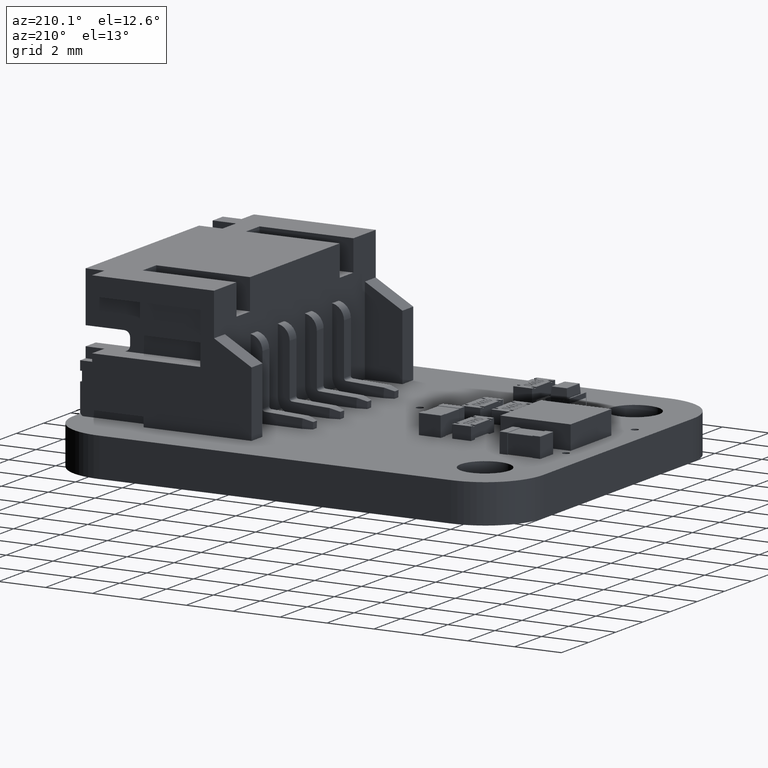
[diagram: clean part render]
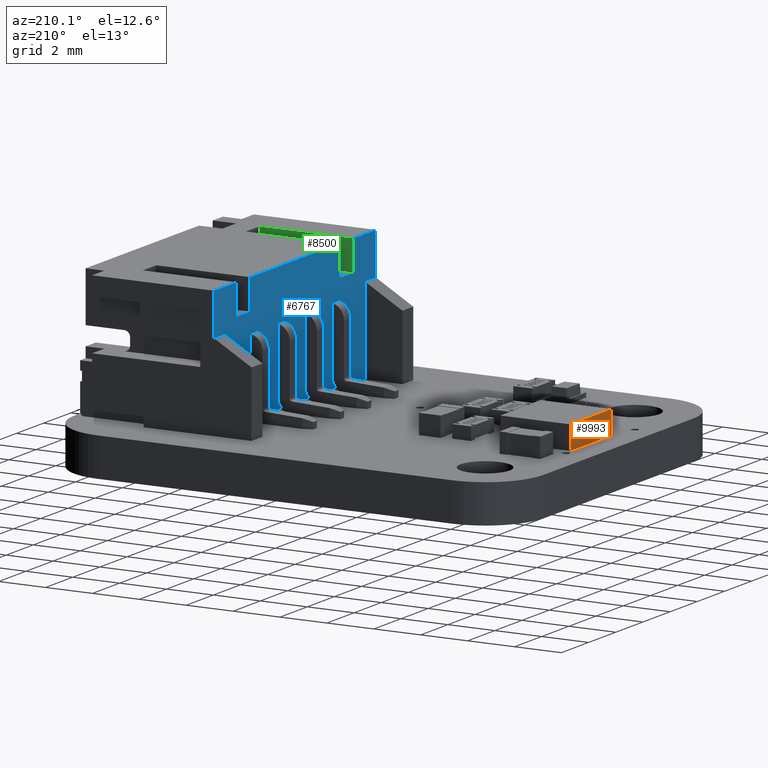
[diagram: same view with three faces highlighted in distinct colors, each labeled with its STEP entity id]
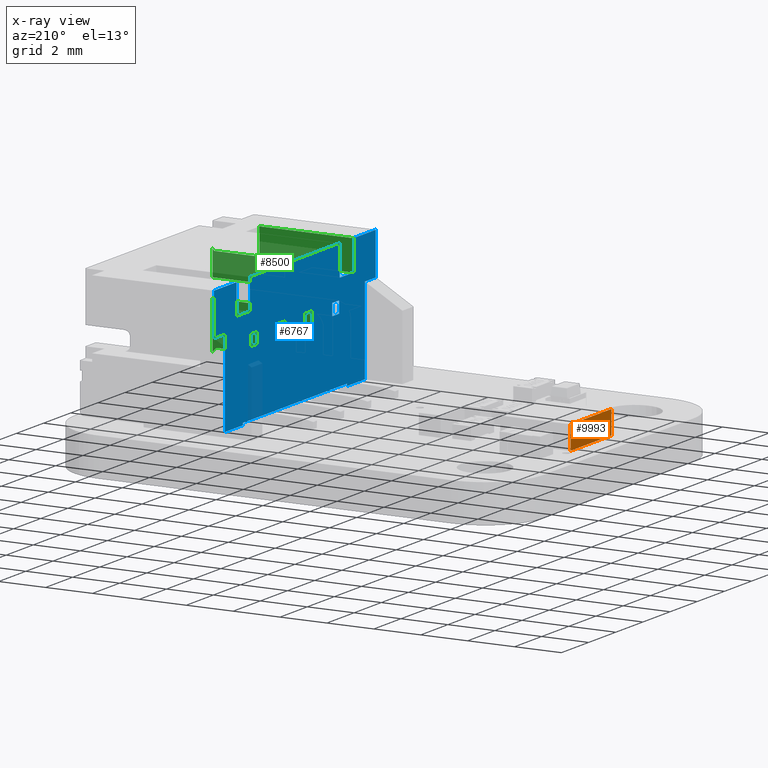
[diagram: x-ray of the same camera — body ghosted, the three highlighted faces saturated]
A machine part, auxiliary view with three faces highlighted in distinct colors.
The next image is the same camera in x-ray (body ghosted, the three faces saturated) — at least one of them is partly hidden behind the body in this view.
Their STEP definitions:

[orange] entity #9993 — the highlighted planar face has unit normal (1, 0, 0).
#9993 = ADVANCED_FACE('',(#9994),#10028,.F.);
#9994 = FACE_BOUND('',#9995,.T.);
#9995 = EDGE_LOOP('',(#9996,#10006,#10014,#10022));
#9996 = ORIENTED_EDGE('',*,*,#9997,.T.);
#9997 = EDGE_CURVE('',#9998,#10000,#10002,.T.);
#9998 = VERTEX_POINT('',#9999);
#9999 = CARTESIAN_POINT('',(1.5,0.,1.5));
#10000 = VERTEX_POINT('',#10001);
#10001 = CARTESIAN_POINT('',(1.5,0.,-1.5));
#10002 = LINE('',#10003,#10004);
#10003 = CARTESIAN_POINT('',(1.5,0.,1.5));
#10004 = VECTOR('',#10005,1.);
#10005 = DIRECTION('',(0.,0.,-1.));
#10006 = ORIENTED_EDGE('',*,*,#10007,.F.);
#10007 = EDGE_CURVE('',#10008,#10000,#10010,.T.);
#10008 = VERTEX_POINT('',#10009);
#10009 = CARTESIAN_POINT('',(1.5,1.,-1.5));
#10010 = LINE('',#10011,#10012);
#10011 = CARTESIAN_POINT('',(1.5,1.,-1.5));
#10012 = VECTOR('',#10013,1.);
#10013 = DIRECTION('',(-0.,-1.,-0.));
#10014 = ORIENTED_EDGE('',*,*,#10015,.F.);
#10015 = EDGE_CURVE('',#10016,#10008,#10018,.T.);
#10016 = VERTEX_POINT('',#10017);
#10017 = CARTESIAN_POINT('',(1.5,1.,1.5));
#10018 = LINE('',#10019,#10020);
#10019 = CARTESIAN_POINT('',(1.5,1.,1.5));
#10020 = VECTOR('',#10021,1.);
#10021 = DIRECTION('',(0.,0.,-1.));
#10022 = ORIENTED_EDGE('',*,*,#10023,.T.);
#10023 = EDGE_CURVE('',#10016,#9998,#10024,.T.);
#10024 = LINE('',#10025,#10026);
#10025 = CARTESIAN_POINT('',(1.5,1.,1.5));
#10026 = VECTOR('',#10027,1.);
#10027 = DIRECTION('',(-0.,-1.,-0.));
#10028 = PLANE('',#10029);
#10029 = AXIS2_PLACEMENT_3D('',#10030,#10031,#10032);
#10030 = CARTESIAN_POINT('',(1.5,1.,1.5));
#10031 = DIRECTION('',(-1.,0.,0.));
#10032 = DIRECTION('',(0.,0.,1.));

[blue] entity #6767 — the highlighted planar face has unit normal (1, 0, 0).
#6456 = VERTEX_POINT('',#6457);
#6457 = CARTESIAN_POINT('',(-1.825,9.000000000024E-02,-6.));
#6463 = EDGE_CURVE('',#6464,#6456,#6466,.T.);
#6464 = VERTEX_POINT('',#6465);
#6465 = CARTESIAN_POINT('',(5.825,9.000000000024E-02,-6.));
#6466 = LINE('',#6467,#6468);
#6467 = CARTESIAN_POINT('',(-3.95,9.000000000024E-02,-6.));
#6468 = VECTOR('',#6469,1.);
#6469 = DIRECTION('',(-1.,1.188166764368E-16,7.281636885445E-15));
#6630 = VERTEX_POINT('',#6631);
#6631 = CARTESIAN_POINT('',(7.949999999999,5.5,-6.));
#6637 = EDGE_CURVE('',#6638,#6630,#6640,.T.);
#6638 = VERTEX_POINT('',#6639);
#6639 = CARTESIAN_POINT('',(6.299999999999,5.5,-6.));
#6640 = LINE('',#6641,#6642);
#6641 = CARTESIAN_POINT('',(7.949999999999,5.5,-6.));
#6642 = VECTOR('',#6643,1.);
#6643 = DIRECTION('',(1.,7.553458536736E-29,7.281636885445E-15));
#6662 = VERTEX_POINT('',#6663);
#6663 = CARTESIAN_POINT('',(5.299999999999,5.5,-6.));
#6669 = EDGE_CURVE('',#6662,#6670,#6672,.T.);
#6670 = VERTEX_POINT('',#6671);
#6671 = CARTESIAN_POINT('',(-1.3,5.5,-6.));
#6672 = LINE('',#6673,#6674);
#6673 = CARTESIAN_POINT('',(-3.95,5.5,-6.));
#6674 = VECTOR('',#6675,1.);
#6675 = DIRECTION('',(-1.,7.553458536736E-29,7.281636885445E-15));
#6694 = VERTEX_POINT('',#6695);
#6695 = CARTESIAN_POINT('',(-2.3,5.5,-6.));
#6701 = EDGE_CURVE('',#6694,#6702,#6704,.T.);
#6702 = VERTEX_POINT('',#6703);
#6703 = CARTESIAN_POINT('',(-3.95,5.5,-6.));
#6704 = LINE('',#6705,#6706);
#6705 = CARTESIAN_POINT('',(-3.95,5.5,-6.));
#6706 = VECTOR('',#6707,1.);
#6707 = DIRECTION('',(-1.,7.553458536736E-29,7.281636885445E-15));
#6767 = ADVANCED_FACE('',(#6768,#6802,#6928,#6962,#6996),#7030,.F.);
#6768 = FACE_BOUND('',#6769,.T.);
#6769 = EDGE_LOOP('',(#6770,#6780,#6788,#6796));
#6770 = ORIENTED_EDGE('',*,*,#6771,.T.);
#6771 = EDGE_CURVE('',#6772,#6774,#6776,.T.);
#6772 = VERTEX_POINT('',#6773);
#6773 = CARTESIAN_POINT('',(1.25,3.35,-6.));
#6774 = VERTEX_POINT('',#6775);
#6775 = CARTESIAN_POINT('',(0.75,3.35,-6.));
#6776 = LINE('',#6777,#6778);
#6777 = CARTESIAN_POINT('',(-3.95,3.35,-6.));
#6778 = VECTOR('',#6779,1.);
#6779 = DIRECTION('',(-1.,-0.,7.281636885445E-15));
#6780 = ORIENTED_EDGE('',*,*,#6781,.T.);
#6781 = EDGE_CURVE('',#6774,#6782,#6784,.T.);
#6782 = VERTEX_POINT('',#6783);
#6783 = CARTESIAN_POINT('',(0.75,2.85,-6.));
#6784 = LINE('',#6785,#6786);
#6785 = CARTESIAN_POINT('',(0.75,3.7,-6.));
#6786 = VECTOR('',#6787,1.);
#6787 = DIRECTION('',(0.,-1.,1.037329745436E-14));
#6788 = ORIENTED_EDGE('',*,*,#6789,.T.);
#6789 = EDGE_CURVE('',#6782,#6790,#6792,.T.);
#6790 = VERTEX_POINT('',#6791);
#6791 = CARTESIAN_POINT('',(1.25,2.85,-6.));
#6792 = LINE('',#6793,#6794);
#6793 = CARTESIAN_POINT('',(-3.95,2.85,-6.));
#6794 = VECTOR('',#6795,1.);
#6795 = DIRECTION('',(1.,0.,-7.281636885445E-15));
#6796 = ORIENTED_EDGE('',*,*,#6797,.T.);
#6797 = EDGE_CURVE('',#6790,#6772,#6798,.T.);
#6798 = LINE('',#6799,#6800);
#6799 = CARTESIAN_POINT('',(1.25,3.7,-6.));
#6800 = VECTOR('',#6801,1.);
#6801 = DIRECTION('',(0.,1.,-1.037329745436E-14));
#6802 = FACE_BOUND('',#6803,.T.);
#6803 = EDGE_LOOP('',(#6804,#6805,#6813,#6821,#6829,#6837,#6843,#6844,
    #6852,#6860,#6866,#6867,#6875,#6883,#6889,#6890,#6898,#6906,#6914,
    #6922));
#6804 = ORIENTED_EDGE('',*,*,#6463,.T.);
#6805 = ORIENTED_EDGE('',*,*,#6806,.T.);
#6806 = EDGE_CURVE('',#6456,#6807,#6809,.T.);
#6807 = VERTEX_POINT('',#6808);
#6808 = CARTESIAN_POINT('',(-1.825,2.349227590661E-13,-6.));
#6809 = LINE('',#6810,#6811);
#6810 = CARTESIAN_POINT('',(-1.825,3.7,-6.));
#6811 = VECTOR('',#6812,1.);
#6812 = DIRECTION('',(0.,-1.,1.037329745436E-14));
#6813 = ORIENTED_EDGE('',*,*,#6814,.F.);
#6814 = EDGE_CURVE('',#6815,#6807,#6817,.T.);
#6815 = VERTEX_POINT('',#6816);
#6816 = CARTESIAN_POINT('',(-3.15,1.637735900447E-13,-6.));
#6817 = LINE('',#6818,#6819);
#6818 = CARTESIAN_POINT('',(-3.95,1.720168712332E-13,-6.));
#6819 = VECTOR('',#6820,1.);
#6820 = DIRECTION('',(1.,-5.374889246194E-17,5.629900911267E-31));
#6821 = ORIENTED_EDGE('',*,*,#6822,.F.);
#6822 = EDGE_CURVE('',#6823,#6815,#6825,.T.);
#6823 = VERTEX_POINT('',#6824);
#6824 = CARTESIAN_POINT('',(-3.15,3.7,-6.));
#6825 = LINE('',#6826,#6827);
#6826 = CARTESIAN_POINT('',(-3.15,3.7,-6.));
#6827 = VECTOR('',#6828,1.);
#6828 = DIRECTION('',(0.,-1.,1.037329745436E-14));
#6829 = ORIENTED_EDGE('',*,*,#6830,.T.);
#6830 = EDGE_CURVE('',#6823,#6831,#6833,.T.);
#6831 = VERTEX_POINT('',#6832);
#6832 = CARTESIAN_POINT('',(-3.95,3.7,-6.));
#6833 = LINE('',#6834,#6835);
#6834 = CARTESIAN_POINT('',(-3.95,3.7,-6.));
#6835 = VECTOR('',#6836,1.);
#6836 = DIRECTION('',(-1.,-3.112729592618E-15,1.797135268213E-15));
#6837 = ORIENTED_EDGE('',*,*,#6838,.F.);
#6838 = EDGE_CURVE('',#6702,#6831,#6839,.T.);
#6839 = LINE('',#6840,#6841);
#6840 = CARTESIAN_POINT('',(-3.95,3.7,-6.));
#6841 = VECTOR('',#6842,1.);
#6842 = DIRECTION('',(0.,-1.,1.037329745436E-14));
#6843 = ORIENTED_EDGE('',*,*,#6701,.F.);
#6844 = ORIENTED_EDGE('',*,*,#6845,.F.);
#6845 = EDGE_CURVE('',#6846,#6694,#6848,.T.);
#6846 = VERTEX_POINT('',#6847);
#6847 = CARTESIAN_POINT('',(-2.3,4.2,-6.));
#6848 = LINE('',#6849,#6850);
#6849 = CARTESIAN_POINT('',(-2.3,3.7,-6.));
#6850 = VECTOR('',#6851,1.);
#6851 = DIRECTION('',(-0.,1.,-1.037329745436E-14));
#6852 = ORIENTED_EDGE('',*,*,#6853,.F.);
#6853 = EDGE_CURVE('',#6854,#6846,#6856,.T.);
#6854 = VERTEX_POINT('',#6855);
#6855 = CARTESIAN_POINT('',(-1.3,4.2,-6.));
#6856 = LINE('',#6857,#6858);
#6857 = CARTESIAN_POINT('',(2.3,4.2,-6.));
#6858 = VECTOR('',#6859,1.);
#6859 = DIRECTION('',(-1.,5.374889246193E-17,-5.739594400163E-31));
#6860 = ORIENTED_EDGE('',*,*,#6861,.T.);
#6861 = EDGE_CURVE('',#6854,#6670,#6862,.T.);
#6862 = LINE('',#6863,#6864);
#6863 = CARTESIAN_POINT('',(-1.3,7.689437438255E-02,-6.));
#6864 = VECTOR('',#6865,1.);
#6865 = DIRECTION('',(5.374889246201E-17,1.,-3.972073845008E-31));
#6866 = ORIENTED_EDGE('',*,*,#6669,.F.);
#6867 = ORIENTED_EDGE('',*,*,#6868,.F.);
#6868 = EDGE_CURVE('',#6869,#6662,#6871,.T.);
#6869 = VERTEX_POINT('',#6870);
#6870 = CARTESIAN_POINT('',(5.299999999999,4.2,-6.));
#6871 = LINE('',#6872,#6873);
#6872 = CARTESIAN_POINT('',(5.299999999999,7.689437438255E-02,-6.));
#6873 = VECTOR('',#6874,1.);
#6874 = DIRECTION('',(-5.374889246201E-17,1.,-3.972073845008E-31));
#6875 = ORIENTED_EDGE('',*,*,#6876,.T.);
#6876 = EDGE_CURVE('',#6869,#6877,#6879,.T.);
#6877 = VERTEX_POINT('',#6878);
#6878 = CARTESIAN_POINT('',(6.299999999999,4.2,-6.));
#6879 = LINE('',#6880,#6881);
#6880 = CARTESIAN_POINT('',(1.699999999999,4.2,-6.));
#6881 = VECTOR('',#6882,1.);
#6882 = DIRECTION('',(1.,5.374889246193E-17,-5.739594400163E-31));
#6883 = ORIENTED_EDGE('',*,*,#6884,.T.);
#6884 = EDGE_CURVE('',#6877,#6638,#6885,.T.);
#6885 = LINE('',#6886,#6887);
#6886 = CARTESIAN_POINT('',(6.299999999999,3.7,-6.));
#6887 = VECTOR('',#6888,1.);
#6888 = DIRECTION('',(-0.,1.,-1.037329745436E-14));
#6889 = ORIENTED_EDGE('',*,*,#6637,.T.);
#6890 = ORIENTED_EDGE('',*,*,#6891,.T.);
#6891 = EDGE_CURVE('',#6630,#6892,#6894,.T.);
#6892 = VERTEX_POINT('',#6893);
#6893 = CARTESIAN_POINT('',(7.949999999999,3.7,-6.));
#6894 = LINE('',#6895,#6896);
#6895 = CARTESIAN_POINT('',(7.949999999999,3.7,-6.));
#6896 = VECTOR('',#6897,1.);
#6897 = DIRECTION('',(0.,-1.,1.037329745436E-14));
#6898 = ORIENTED_EDGE('',*,*,#6899,.F.);
#6899 = EDGE_CURVE('',#6900,#6892,#6902,.T.);
#6900 = VERTEX_POINT('',#6901);
#6901 = CARTESIAN_POINT('',(7.149999999999,3.7,-6.));
#6902 = LINE('',#6903,#6904);
#6903 = CARTESIAN_POINT('',(7.949999999999,3.7,-6.));
#6904 = VECTOR('',#6905,1.);
#6905 = DIRECTION('',(1.,-3.112729592618E-15,1.797135268213E-15));
#6906 = ORIENTED_EDGE('',*,*,#6907,.T.);
#6907 = EDGE_CURVE('',#6900,#6908,#6910,.T.);
#6908 = VERTEX_POINT('',#6909);
#6909 = CARTESIAN_POINT('',(7.149999999999,1.637735900447E-13,-6.));
#6910 = LINE('',#6911,#6912);
#6911 = CARTESIAN_POINT('',(7.149999999999,3.7,-6.));
#6912 = VECTOR('',#6913,1.);
#6913 = DIRECTION('',(0.,-1.,1.037329745436E-14));
#6914 = ORIENTED_EDGE('',*,*,#6915,.T.);
#6915 = EDGE_CURVE('',#6908,#6916,#6918,.T.);
#6916 = VERTEX_POINT('',#6917);
#6917 = CARTESIAN_POINT('',(5.825,2.349227590661E-13,-6.));
#6918 = LINE('',#6919,#6920);
#6919 = CARTESIAN_POINT('',(7.949999999999,1.720168712332E-13,-6.));
#6920 = VECTOR('',#6921,1.);
#6921 = DIRECTION('',(-1.,-5.374889246194E-17,5.629900911267E-31));
#6922 = ORIENTED_EDGE('',*,*,#6923,.F.);
#6923 = EDGE_CURVE('',#6464,#6916,#6924,.T.);
#6924 = LINE('',#6925,#6926);
#6925 = CARTESIAN_POINT('',(5.825,3.7,-6.));
#6926 = VECTOR('',#6927,1.);
#6927 = DIRECTION('',(0.,-1.,1.037329745436E-14));
#6928 = FACE_BOUND('',#6929,.T.);
#6929 = EDGE_LOOP('',(#6930,#6940,#6948,#6956));
#6930 = ORIENTED_EDGE('',*,*,#6931,.F.);
#6931 = EDGE_CURVE('',#6932,#6934,#6936,.T.);
#6932 = VERTEX_POINT('',#6933);
#6933 = CARTESIAN_POINT('',(-0.75,3.35,-6.));
#6934 = VERTEX_POINT('',#6935);
#6935 = CARTESIAN_POINT('',(-0.75,2.85,-6.));
#6936 = LINE('',#6937,#6938);
#6937 = CARTESIAN_POINT('',(-0.75,3.7,-6.));
#6938 = VECTOR('',#6939,1.);
#6939 = DIRECTION('',(0.,-1.,1.037329745436E-14));
#6940 = ORIENTED_EDGE('',*,*,#6941,.T.);
#6941 = EDGE_CURVE('',#6932,#6942,#6944,.T.);
#6942 = VERTEX_POINT('',#6943);
#6943 = CARTESIAN_POINT('',(-1.25,3.35,-6.));
#6944 = LINE('',#6945,#6946);
#6945 = CARTESIAN_POINT('',(-0.75,3.35,-6.));
#6946 = VECTOR('',#6947,1.);
#6947 = DIRECTION('',(-1.,-5.374889246201E-17,-7.281636885445E-15));
#6948 = ORIENTED_EDGE('',*,*,#6949,.T.);
#6949 = EDGE_CURVE('',#6942,#6950,#6952,.T.);
#6950 = VERTEX_POINT('',#6951);
#6951 = CARTESIAN_POINT('',(-1.25,2.85,-6.));
#6952 = LINE('',#6953,#6954);
#6953 = CARTESIAN_POINT('',(-1.25,3.7,-6.));
#6954 = VECTOR('',#6955,1.);
#6955 = DIRECTION('',(5.374889246194E-17,-1.,1.037329745436E-14));
#6956 = ORIENTED_EDGE('',*,*,#6957,.F.);
#6957 = EDGE_CURVE('',#6934,#6950,#6958,.T.);
#6958 = LINE('',#6959,#6960);
#6959 = CARTESIAN_POINT('',(-0.75,2.85,-6.));
#6960 = VECTOR('',#6961,1.);
#6961 = DIRECTION('',(-1.,-5.374889246201E-17,-7.281636885445E-15));
#6962 = FACE_BOUND('',#6963,.T.);
#6963 = EDGE_LOOP('',(#6964,#6974,#6982,#6990));
#6964 = ORIENTED_EDGE('',*,*,#6965,.T.);
#6965 = EDGE_CURVE('',#6966,#6968,#6970,.T.);
#6966 = VERTEX_POINT('',#6967);
#6967 = CARTESIAN_POINT('',(4.75,3.35,-6.));
#6968 = VERTEX_POINT('',#6969);
#6969 = CARTESIAN_POINT('',(4.75,2.85,-6.));
#6970 = LINE('',#6971,#6972);
#6971 = CARTESIAN_POINT('',(4.749999999999,3.7,-6.));
#6972 = VECTOR('',#6973,1.);
#6973 = DIRECTION('',(0.,-1.,1.037329745436E-14));
#6974 = ORIENTED_EDGE('',*,*,#6975,.T.);
#6975 = EDGE_CURVE('',#6968,#6976,#6978,.T.);
#6976 = VERTEX_POINT('',#6977);
#6977 = CARTESIAN_POINT('',(5.25,2.85,-6.));
#6978 = LINE('',#6979,#6980);
#6979 = CARTESIAN_POINT('',(4.75,2.85,-6.));
#6980 = VECTOR('',#6981,1.);
#6981 = DIRECTION('',(1.,-5.374889246201E-17,-7.281636885445E-15));
#6982 = ORIENTED_EDGE('',*,*,#6983,.F.);
#6983 = EDGE_CURVE('',#6984,#6976,#6986,.T.);
#6984 = VERTEX_POINT('',#6985);
#6985 = CARTESIAN_POINT('',(5.25,3.35,-6.));
#6986 = LINE('',#6987,#6988);
#6987 = CARTESIAN_POINT('',(5.25,3.7,-6.));
#6988 = VECTOR('',#6989,1.);
#6989 = DIRECTION('',(-5.374889246194E-17,-1.,1.037329745436E-14));
#6990 = ORIENTED_EDGE('',*,*,#6991,.F.);
#6991 = EDGE_CURVE('',#6966,#6984,#6992,.T.);
#6992 = LINE('',#6993,#6994);
#6993 = CARTESIAN_POINT('',(4.75,3.35,-6.));
#6994 = VECTOR('',#6995,1.);
#6995 = DIRECTION('',(1.,-5.374889246201E-17,-7.281636885445E-15));
#6996 = FACE_BOUND('',#6997,.T.);
#6997 = EDGE_LOOP('',(#6998,#7008,#7016,#7024));
#6998 = ORIENTED_EDGE('',*,*,#6999,.T.);
#6999 = EDGE_CURVE('',#7000,#7002,#7004,.T.);
#7000 = VERTEX_POINT('',#7001);
#7001 = CARTESIAN_POINT('',(3.25,3.35,-6.));
#7002 = VERTEX_POINT('',#7003);
#7003 = CARTESIAN_POINT('',(2.75,3.35,-6.));
#7004 = LINE('',#7005,#7006);
#7005 = CARTESIAN_POINT('',(-1.95,3.35,-6.));
#7006 = VECTOR('',#7007,1.);
#7007 = DIRECTION('',(-1.,-0.,7.281636885445E-15));
#7008 = ORIENTED_EDGE('',*,*,#7009,.T.);
#7009 = EDGE_CURVE('',#7002,#7010,#7012,.T.);
#7010 = VERTEX_POINT('',#7011);
#7011 = CARTESIAN_POINT('',(2.75,2.85,-6.));
#7012 = LINE('',#7013,#7014);
#7013 = CARTESIAN_POINT('',(2.75,3.7,-6.));
#7014 = VECTOR('',#7015,1.);
#7015 = DIRECTION('',(0.,-1.,1.037329745436E-14));
#7016 = ORIENTED_EDGE('',*,*,#7017,.T.);
#7017 = EDGE_CURVE('',#7010,#7018,#7020,.T.);
#7018 = VERTEX_POINT('',#7019);
#7019 = CARTESIAN_POINT('',(3.25,2.85,-6.));
#7020 = LINE('',#7021,#7022);
#7021 = CARTESIAN_POINT('',(-1.95,2.85,-6.));
#7022 = VECTOR('',#7023,1.);
#7023 = DIRECTION('',(1.,0.,-7.281636885445E-15));
#7024 = ORIENTED_EDGE('',*,*,#7025,.T.);
#7025 = EDGE_CURVE('',#7018,#7000,#7026,.T.);
#7026 = LINE('',#7027,#7028);
#7027 = CARTESIAN_POINT('',(3.25,3.7,-6.));
#7028 = VECTOR('',#7029,1.);
#7029 = DIRECTION('',(0.,1.,-1.037329745436E-14));
#7030 = PLANE('',#7031);
#7031 = AXIS2_PLACEMENT_3D('',#7032,#7033,#7034);
#7032 = CARTESIAN_POINT('',(-3.95,3.7,-6.));
#7033 = DIRECTION('',(7.281636885445E-15,1.037329745436E-14,1.));
#7034 = DIRECTION('',(0.,-1.,1.037329745436E-14));

[green] entity #8500 — the highlighted planar face has unit normal (-0, 1, -0).
#6416 = VERTEX_POINT('',#6417);
#6417 = CARTESIAN_POINT('',(-2.3,0.7,-0.16));
#6423 = EDGE_CURVE('',#6416,#6424,#6426,.T.);
#6424 = VERTEX_POINT('',#6425);
#6425 = CARTESIAN_POINT('',(-2.3,0.54,-5.228303582564E-14));
#6426 = LINE('',#6427,#6428);
#6427 = CARTESIAN_POINT('',(-2.3,0.54,-5.393765258128E-14));
#6428 = VECTOR('',#6429,1.);
#6429 = DIRECTION('',(5.110888613495E-15,-0.707106781187,0.707106781187)
  );
#6486 = EDGE_CURVE('',#6487,#6424,#6489,.T.);
#6487 = VERTEX_POINT('',#6488);
#6488 = CARTESIAN_POINT('',(-2.3,2.55,-1.040834085586E-14));
#6489 = LINE('',#6490,#6491);
#6490 = CARTESIAN_POINT('',(-2.3,5.5,-4.163336342344E-14));
#6491 = VECTOR('',#6492,1.);
#6492 = DIRECTION('',(-0.,-1.,1.047445008333E-14));
#6686 = VERTEX_POINT('',#6687);
#6687 = CARTESIAN_POINT('',(-2.3,5.5,-2.));
#6693 = EDGE_CURVE('',#6694,#6686,#6696,.T.);
#6694 = VERTEX_POINT('',#6695);
#6695 = CARTESIAN_POINT('',(-2.3,5.5,-6.));
#6696 = LINE('',#6697,#6698);
#6697 = CARTESIAN_POINT('',(-2.3,5.5,1.040834085586E-14));
#6698 = VECTOR('',#6699,1.);
#6699 = DIRECTION('',(7.281636885445E-15,-0.,1.));
#6845 = EDGE_CURVE('',#6846,#6694,#6848,.T.);
#6846 = VERTEX_POINT('',#6847);
#6847 = CARTESIAN_POINT('',(-2.3,4.2,-6.));
#6848 = LINE('',#6849,#6850);
#6849 = CARTESIAN_POINT('',(-2.3,3.7,-6.));
#6850 = VECTOR('',#6851,1.);
#6851 = DIRECTION('',(-0.,1.,-1.037329745436E-14));
#7080 = VERTEX_POINT('',#7081);
#7081 = CARTESIAN_POINT('',(-2.3,3.35,-1.734723475977E-14));
#7087 = EDGE_CURVE('',#7088,#7080,#7090,.T.);
#7088 = VERTEX_POINT('',#7089);
#7089 = CARTESIAN_POINT('',(-2.3,4.43,-3.042570183428E-14));
#7090 = LINE('',#7091,#7092);
#7091 = CARTESIAN_POINT('',(-2.3,5.5,-4.163336342344E-14));
#7092 = VECTOR('',#7093,1.);
#7093 = DIRECTION('',(-0.,-1.,1.047445008333E-14));
#7149 = VERTEX_POINT('',#7150);
#7150 = CARTESIAN_POINT('',(-2.3,0.7,-4.85));
#7158 = EDGE_CURVE('',#6416,#7149,#7159,.T.);
#7159 = LINE('',#7160,#7161);
#7160 = CARTESIAN_POINT('',(-2.3,0.7,-4.85));
#7161 = VECTOR('',#7162,1.);
#7162 = DIRECTION('',(0.,-1.045209539936E-14,-1.));
#7180 = VERTEX_POINT('',#7181);
#7181 = CARTESIAN_POINT('',(-2.3,2.225,-4.85));
#7189 = EDGE_CURVE('',#7149,#7180,#7190,.T.);
#7190 = LINE('',#7191,#7192);
#7191 = CARTESIAN_POINT('',(-2.3,0.7,-4.85));
#7192 = VECTOR('',#7193,1.);
#7193 = DIRECTION('',(5.374889246201E-17,1.,-3.913799179032E-31));
#7307 = VERTEX_POINT('',#7308);
#7308 = CARTESIAN_POINT('',(-2.3,2.825,-4.25));
#7316 = EDGE_CURVE('',#7180,#7307,#7317,.T.);
#7317 = LINE('',#7318,#7319);
#7318 = CARTESIAN_POINT('',(-2.3,2.825,-4.25));
#7319 = VECTOR('',#7320,1.);
#7320 = DIRECTION('',(0.,0.707106781187,0.707106781187));
#7361 = VERTEX_POINT('',#7362);
#7362 = CARTESIAN_POINT('',(-2.3,4.2,-4.25));
#7368 = EDGE_CURVE('',#7307,#7361,#7369,.T.);
#7369 = LINE('',#7370,#7371);
#7370 = CARTESIAN_POINT('',(-2.3,4.2,-4.25));
#7371 = VECTOR('',#7372,1.);
#7372 = DIRECTION('',(0.,1.,-1.110525862005E-14));
#7909 = VERTEX_POINT('',#7910);
#7910 = CARTESIAN_POINT('',(-2.3,4.355,-7.500000000003E-02));
#7916 = EDGE_CURVE('',#7917,#7909,#7919,.T.);
#7917 = VERTEX_POINT('',#7918);
#7918 = CARTESIAN_POINT('',(-2.3,4.355,-2.));
#7919 = LINE('',#7920,#7921);
#7920 = CARTESIAN_POINT('',(-2.3,4.355,-5.261941203826));
#7921 = VECTOR('',#7922,1.);
#7922 = DIRECTION('',(-0.,-0.,1.));
#7941 = VERTEX_POINT('',#7942);
#7942 = CARTESIAN_POINT('',(-2.3,2.8,-1.9));
#7948 = EDGE_CURVE('',#7941,#7949,#7951,.T.);
#7949 = VERTEX_POINT('',#7950);
#7950 = CARTESIAN_POINT('',(-2.3,2.55,-1.65));
#7951 = CIRCLE('',#7952,0.25);
#7952 = AXIS2_PLACEMENT_3D('',#7953,#7954,#7955);
#7953 = CARTESIAN_POINT('',(-2.3,2.8,-1.65));
#7954 = DIRECTION('',(-1.,5.374889246201E-17,7.281636885445E-15));
#7955 = DIRECTION('',(-7.281636885445E-15,-1.040834085586E-14,-1.));
#7989 = EDGE_CURVE('',#7990,#7941,#7992,.T.);
#7990 = VERTEX_POINT('',#7991);
#7991 = CARTESIAN_POINT('',(-2.3,3.1,-1.9));
#7992 = LINE('',#7993,#7994);
#7993 = CARTESIAN_POINT('',(-2.3,2.55,-1.9));
#7994 = VECTOR('',#7995,1.);
#7995 = DIRECTION('',(-0.,-1.,1.047445008333E-14));
#8022 = VERTEX_POINT('',#8023);
#8023 = CARTESIAN_POINT('',(-2.3,3.35,-1.65));
#8029 = EDGE_CURVE('',#8022,#7990,#8030,.T.);
#8030 = CIRCLE('',#8031,0.25);
#8031 = AXIS2_PLACEMENT_3D('',#8032,#8033,#8034);
#8032 = CARTESIAN_POINT('',(-2.3,3.1,-1.65));
#8033 = DIRECTION('',(-1.,5.374889246201E-17,7.281636885445E-15));
#8034 = DIRECTION('',(-7.281636885445E-15,3.295974604356E-14,-1.));
#8084 = EDGE_CURVE('',#7361,#6846,#8085,.T.);
#8085 = LINE('',#8086,#8087);
#8086 = CARTESIAN_POINT('',(-2.3,4.2,1.040834085586E-14));
#8087 = VECTOR('',#8088,1.);
#8088 = DIRECTION('',(-7.281636885445E-15,0.,-1.));
#8219 = EDGE_CURVE('',#7909,#7088,#8220,.T.);
#8220 = LINE('',#8221,#8222);
#8221 = CARTESIAN_POINT('',(-2.3,4.43,-2.967517972233E-14));
#8222 = VECTOR('',#8223,1.);
#8223 = DIRECTION('',(5.186901026178E-15,0.707106781187,0.707106781187)
  );
#8240 = EDGE_CURVE('',#7080,#8022,#8241,.T.);
#8241 = LINE('',#8242,#8243);
#8242 = CARTESIAN_POINT('',(-2.3,3.35,1.040834085586E-14));
#8243 = VECTOR('',#8244,1.);
#8244 = DIRECTION('',(-7.281636885445E-15,0.,-1.));
#8358 = EDGE_CURVE('',#6686,#7917,#8359,.T.);
#8359 = LINE('',#8360,#8361);
#8360 = CARTESIAN_POINT('',(-2.3,0.7,-2.));
#8361 = VECTOR('',#8362,1.);
#8362 = DIRECTION('',(-5.374889246201E-17,-1.,3.913799179032E-31));
#8471 = EDGE_CURVE('',#7949,#6487,#8472,.T.);
#8472 = LINE('',#8473,#8474);
#8473 = CARTESIAN_POINT('',(-2.3,2.55,1.040834085586E-14));
#8474 = VECTOR('',#8475,1.);
#8475 = DIRECTION('',(7.281636885445E-15,-0.,1.));
#8500 = ADVANCED_FACE('',(#8501),#8521,.T.);
#8501 = FACE_BOUND('',#8502,.T.);
#8502 = EDGE_LOOP('',(#8503,#8504,#8505,#8506,#8507,#8508,#8509,#8510,
    #8511,#8512,#8513,#8514,#8515,#8516,#8517,#8518,#8519,#8520));
#8503 = ORIENTED_EDGE('',*,*,#7087,.T.);
#8504 = ORIENTED_EDGE('',*,*,#8240,.T.);
#8505 = ORIENTED_EDGE('',*,*,#8029,.T.);
#8506 = ORIENTED_EDGE('',*,*,#7989,.T.);
#8507 = ORIENTED_EDGE('',*,*,#7948,.T.);
#8508 = ORIENTED_EDGE('',*,*,#8471,.T.);
#8509 = ORIENTED_EDGE('',*,*,#6486,.T.);
#8510 = ORIENTED_EDGE('',*,*,#6423,.F.);
#8511 = ORIENTED_EDGE('',*,*,#7158,.T.);
#8512 = ORIENTED_EDGE('',*,*,#7189,.T.);
#8513 = ORIENTED_EDGE('',*,*,#7316,.T.);
#8514 = ORIENTED_EDGE('',*,*,#7368,.T.);
#8515 = ORIENTED_EDGE('',*,*,#8084,.T.);
#8516 = ORIENTED_EDGE('',*,*,#6845,.T.);
#8517 = ORIENTED_EDGE('',*,*,#6693,.T.);
#8518 = ORIENTED_EDGE('',*,*,#8358,.T.);
#8519 = ORIENTED_EDGE('',*,*,#7916,.T.);
#8520 = ORIENTED_EDGE('',*,*,#8219,.T.);
#8521 = PLANE('',#8522);
#8522 = AXIS2_PLACEMENT_3D('',#8523,#8524,#8525);
#8523 = CARTESIAN_POINT('',(-2.3,0.7,1.040834085586E-14));
#8524 = DIRECTION('',(1.,-5.374889246201E-17,-7.281636885445E-15));
#8525 = DIRECTION('',(-7.281636885445E-15,0.,-1.));